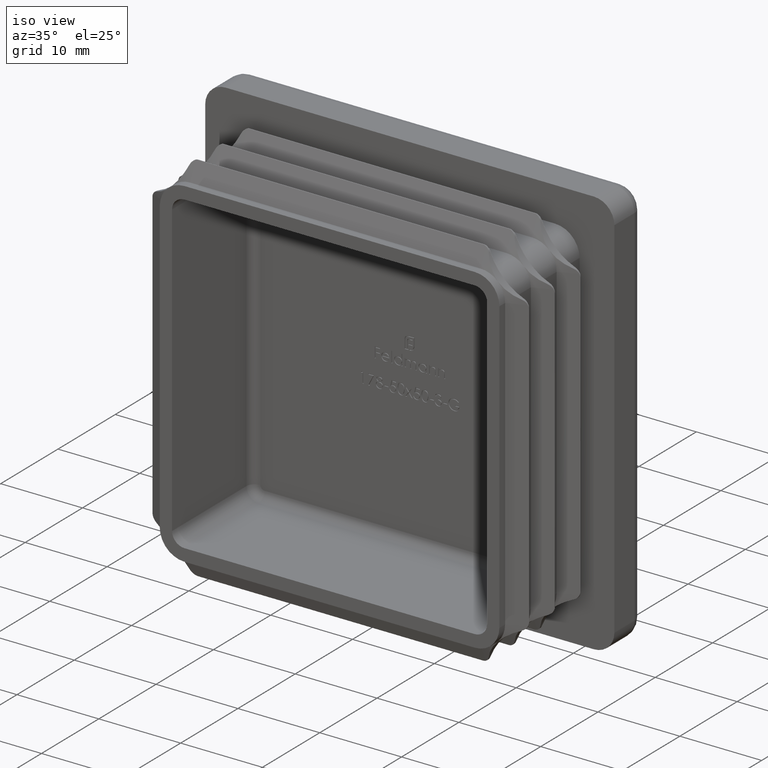
[diagram: clean part render]
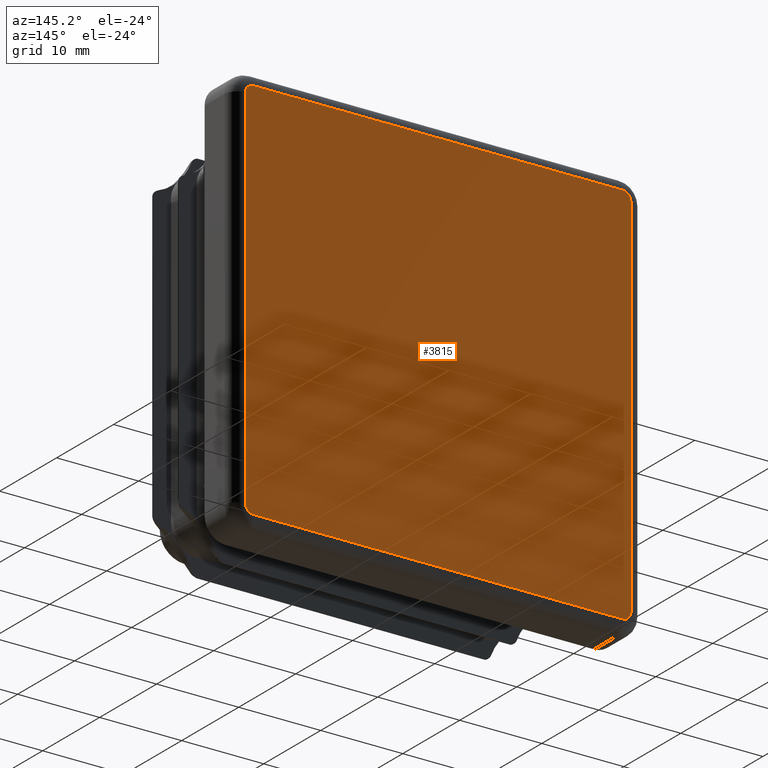
[diagram: tour spotlight — one face highlighted and labeled with its STEP entity id]
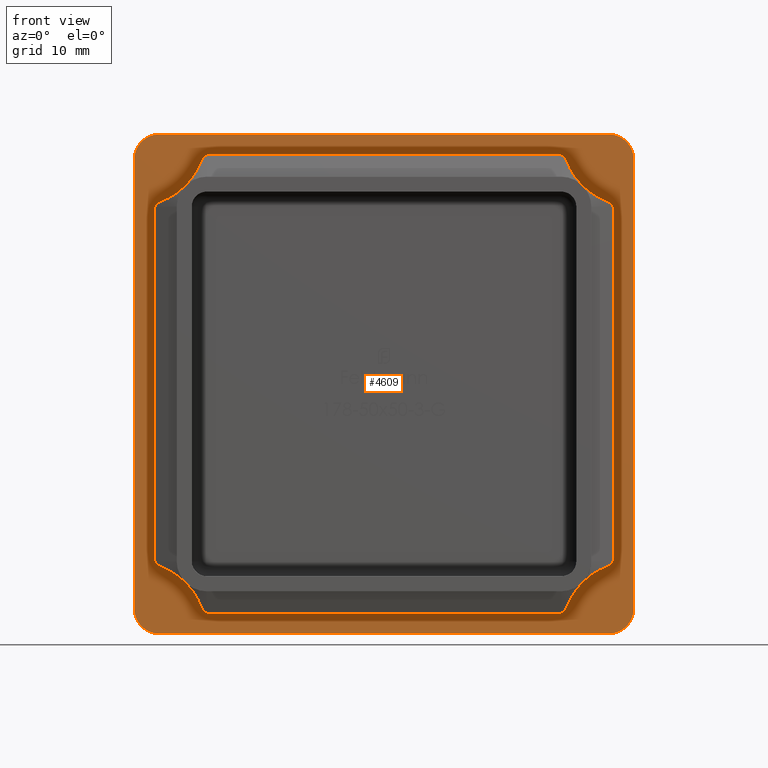
[diagram: tour spotlight — one face highlighted and labeled with its STEP entity id]
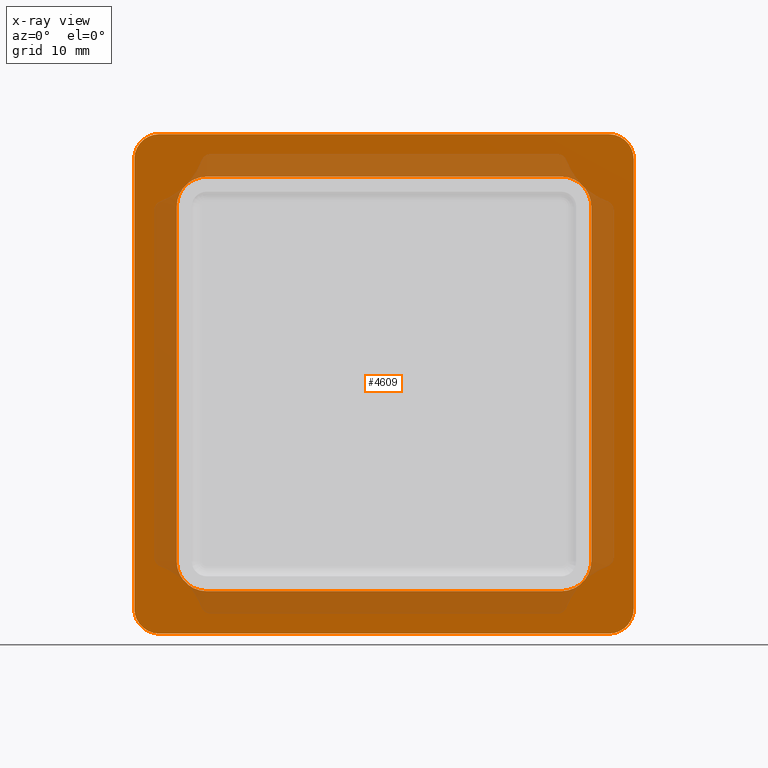
[diagram: x-ray of the same camera — body ghosted, this tour face saturated]
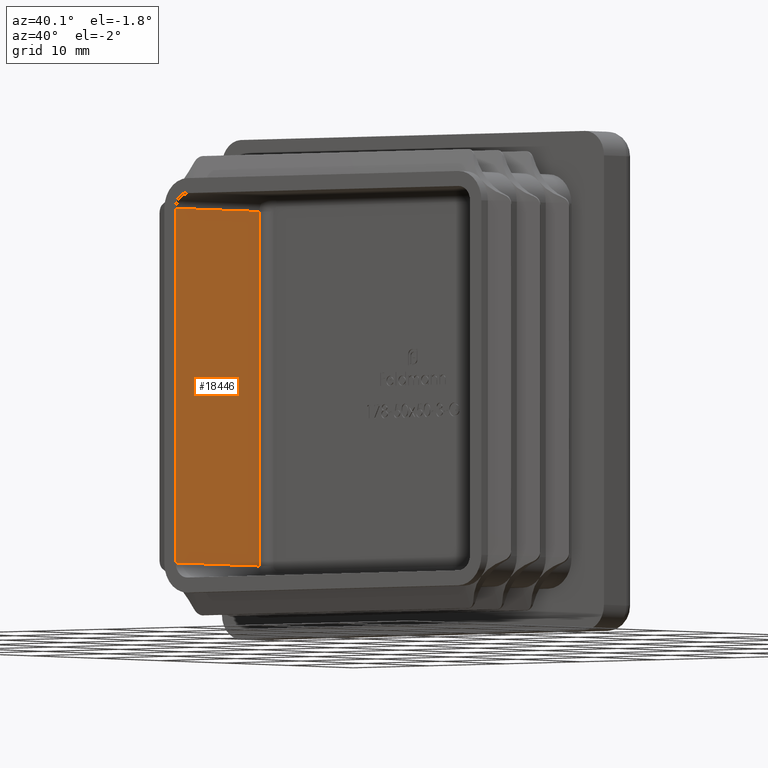
[diagram: tour spotlight — one face highlighted and labeled with its STEP entity id]
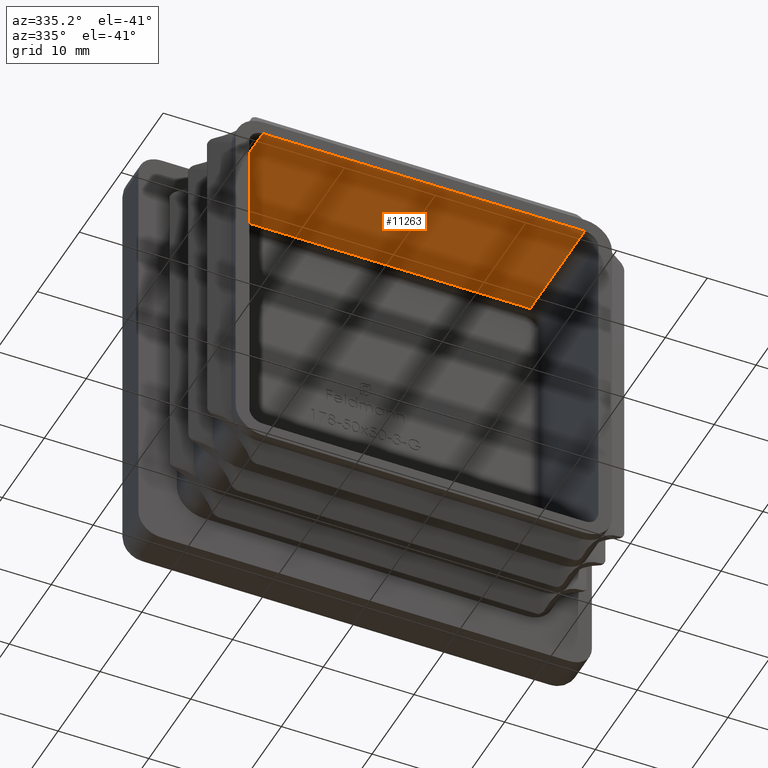
[diagram: tour spotlight — one face highlighted and labeled with its STEP entity id]
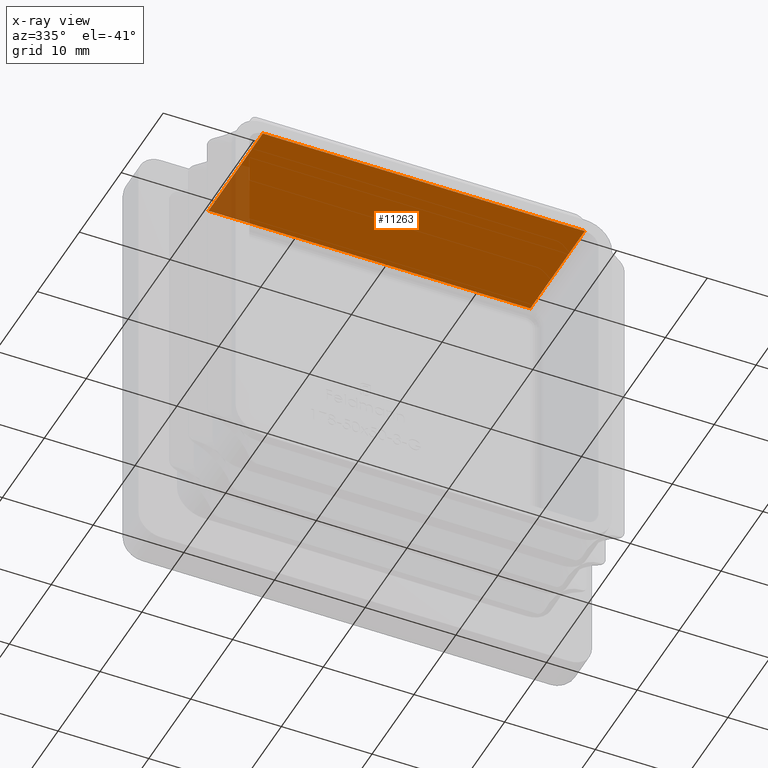
[diagram: x-ray of the same camera — body ghosted, this tour face saturated]
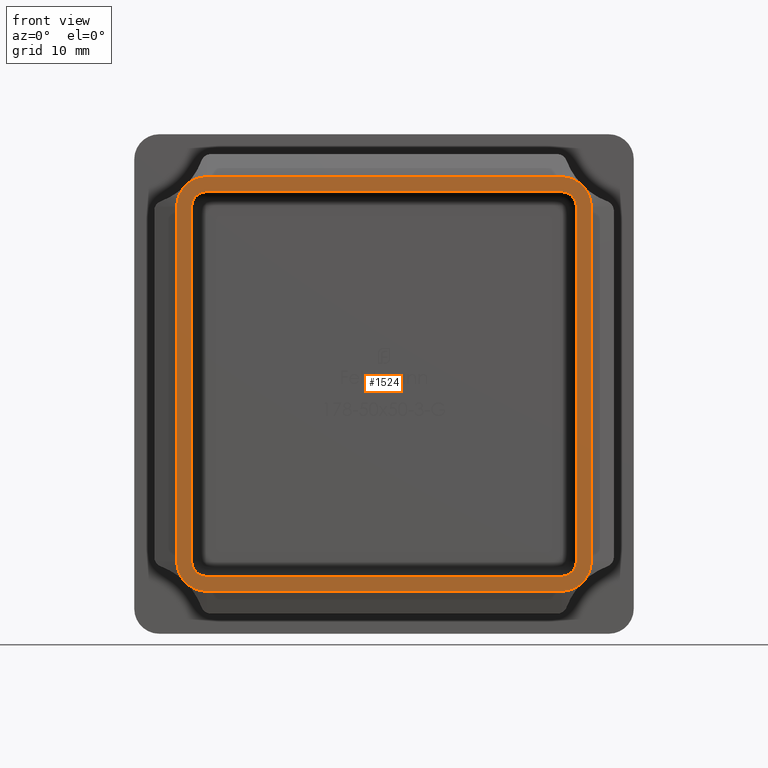
[diagram: tour spotlight — one face highlighted and labeled with its STEP entity id]
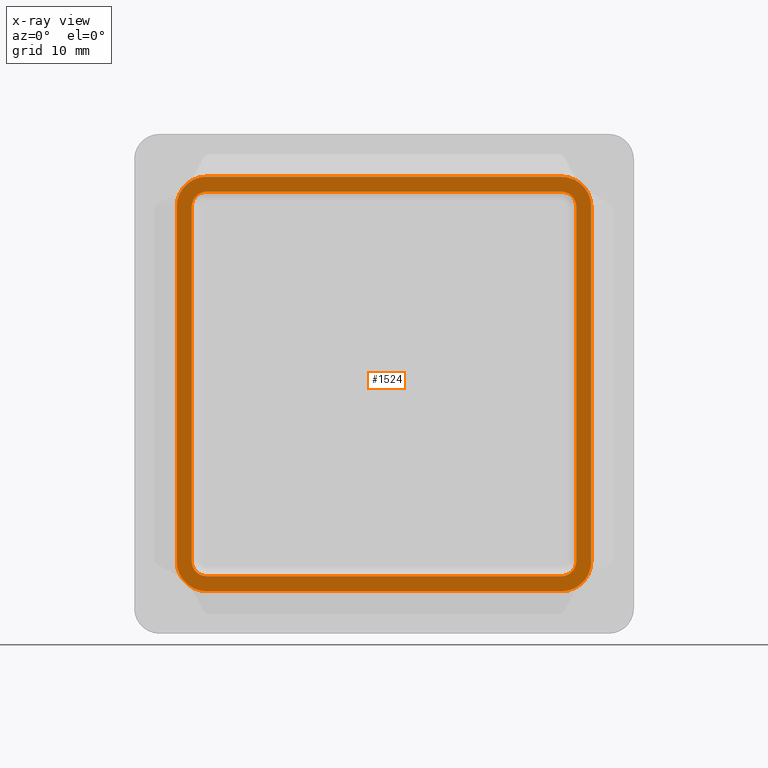
[diagram: x-ray of the same camera — body ghosted, this tour face saturated]
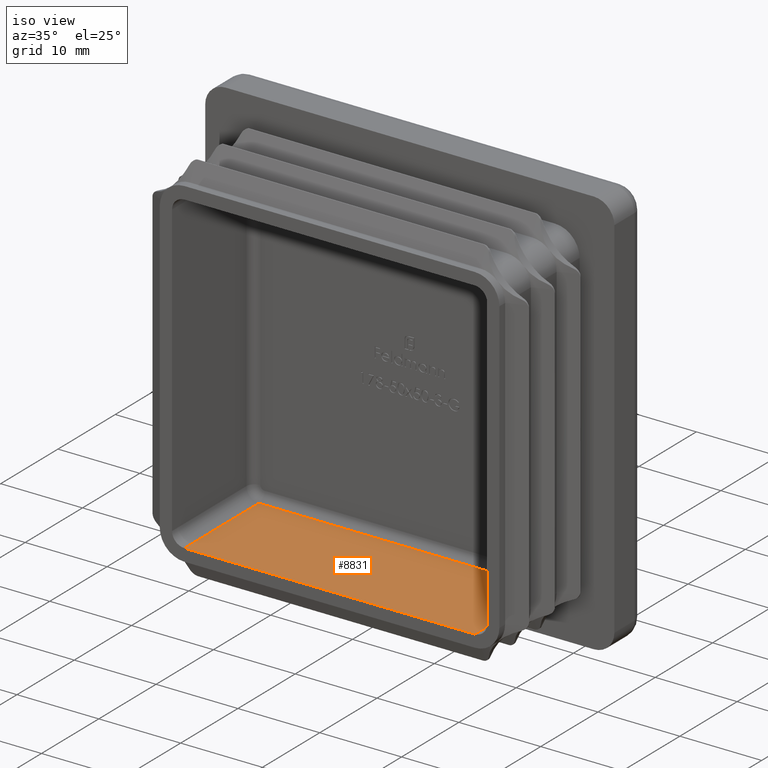
[diagram: tour spotlight — one face highlighted and labeled with its STEP entity id]
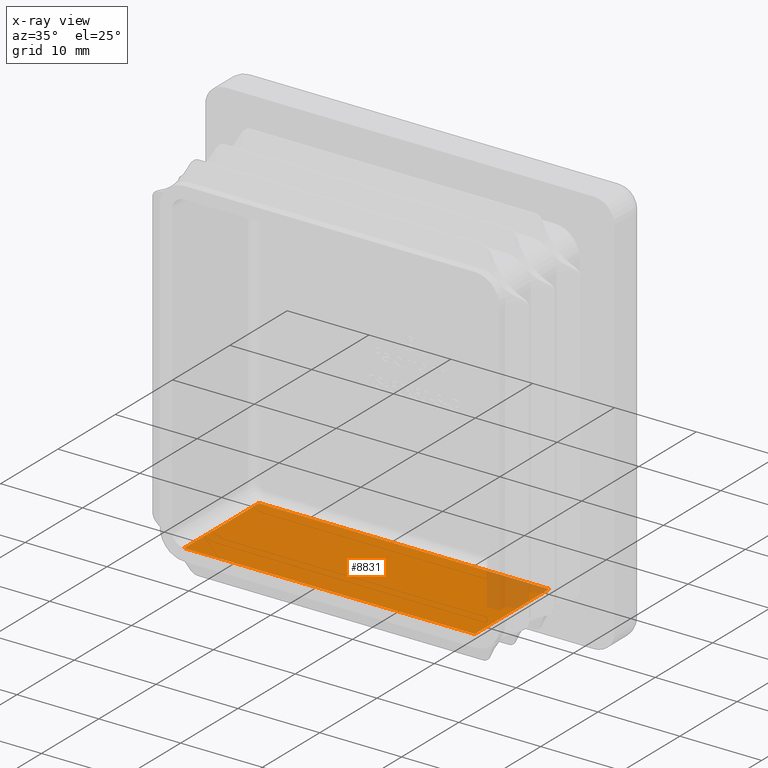
[diagram: x-ray of the same camera — body ghosted, this tour face saturated]
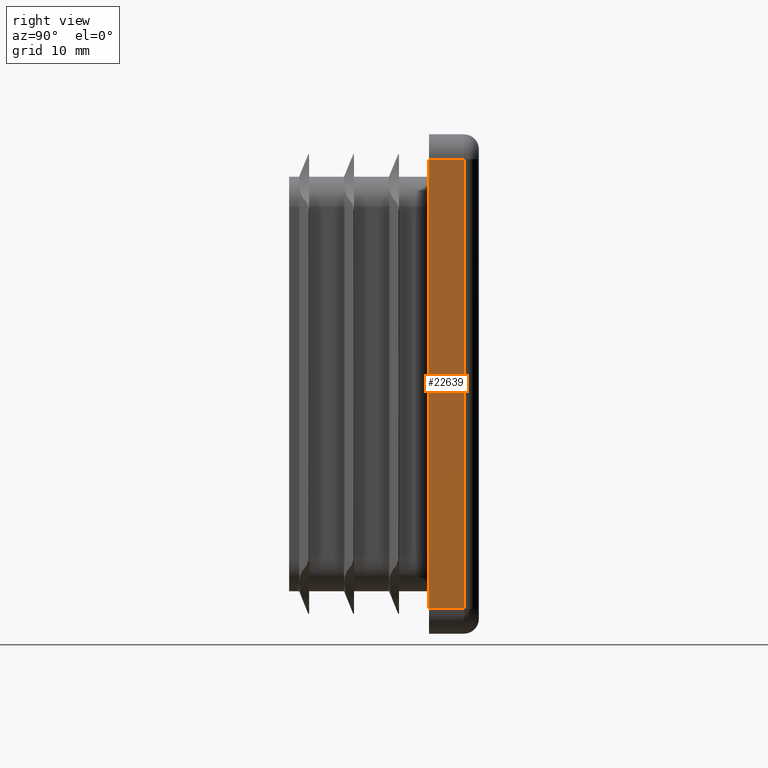
[diagram: tour spotlight — one face highlighted and labeled with its STEP entity id]
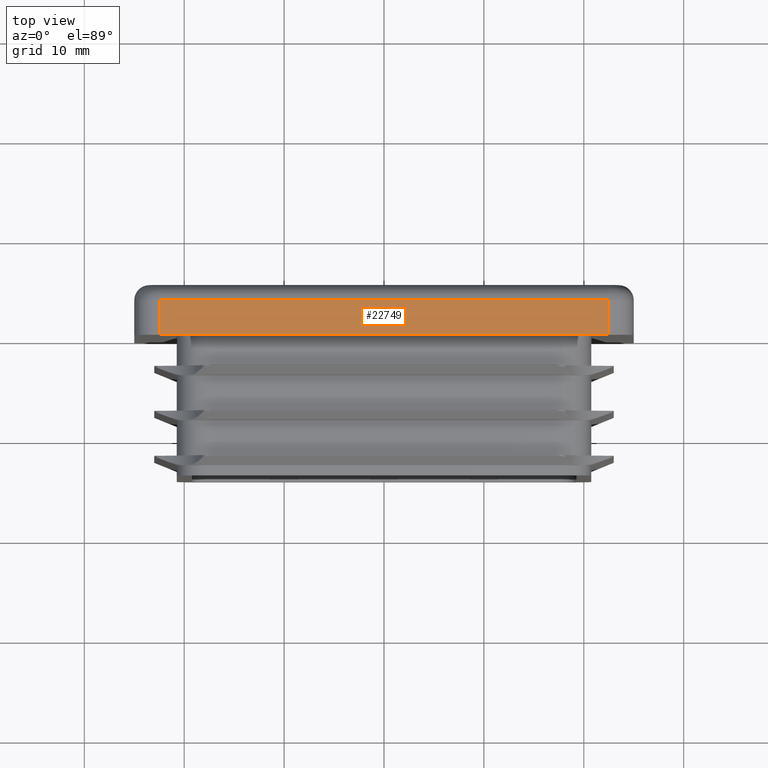
[diagram: tour spotlight — one face highlighted and labeled with its STEP entity id]
A machine part: a face-by-face anatomy tour. The part has 497 B-rep faces; the first image is the clean iso view, then the 8 largest visible faces are spotlighted one at a time (largest first), each with its STEP entity span.

Face 1 — auxiliary view, entity #3815. In plain terms, the highlighted planar face has unit normal (0, 1, 0).
Definition (entity closure, byte-faithful):
#810 = DIRECTION ( 'NONE',  ( 0.000000000000000000, -0.000000000000000000, 1.000000000000000000 ) ) ;
#829 = EDGE_CURVE ( 'NONE', #2502, #1906, #14884, .T. ) ;
#1675 = AXIS2_PLACEMENT_3D ( 'NONE', #22201, #20360, #14834 ) ;
#1743 = VECTOR ( 'NONE', #17785, 1000.000000000000000 ) ;
#1906 = VERTEX_POINT ( 'NONE', #18421 ) ;
#2252 = CARTESIAN_POINT ( 'NONE',  ( -22.50000000000000355, 5.000000000000000000, -23.50000000000000000 ) ) ;
#2304 = CARTESIAN_POINT ( 'NONE',  ( -22.49999999999999645, 5.000000000000000000, 22.50000000000000355 ) ) ;
#2390 = CARTESIAN_POINT ( 'NONE',  ( -23.50000000000000355, 5.000000000000000000, -22.50000000000000355 ) ) ;
#2502 = VERTEX_POINT ( 'NONE', #13738 ) ;
#2524 = DIRECTION ( 'NONE',  ( 1.387778780781445676E-16, -0.000000000000000000, 1.000000000000000000 ) ) ;
#2605 = LINE ( 'NONE', #12374, #7595 ) ;
#3180 = VERTEX_POINT ( 'NONE', #22377 ) ;
#3650 = CARTESIAN_POINT ( 'NONE',  ( 23.50000000000000000, 5.000000000000000000, -22.50000000000000355 ) ) ;
#3815 = ADVANCED_FACE ( 'NONE', ( #11778 ), #9619, .T. ) ;
#4018 = ORIENTED_EDGE ( 'NONE', *, *, #4838, .T. ) ;
#4442 = AXIS2_PLACEMENT_3D ( 'NONE', #18517, #18599, #810 ) ;
#4512 = DIRECTION ( 'NONE',  ( 0.000000000000000000, 0.000000000000000000, 1.000000000000000000 ) ) ;
#4838 = EDGE_CURVE ( 'NONE', #19682, #17691, #20911, .T. ) ;
#5064 = AXIS2_PLACEMENT_3D ( 'NONE', #22227, #6131, #4512 ) ;
#5119 = DIRECTION ( 'NONE',  ( 1.000000000000000000, -0.000000000000000000, 0.000000000000000000 ) ) ;
#5222 = CARTESIAN_POINT ( 'NONE',  ( 22.50000000000000000, 5.000000000000000000, -23.50000000000000355 ) ) ;
#5234 = EDGE_CURVE ( 'NONE', #1906, #9179, #15049, .T. ) ;
#5398 = EDGE_CURVE ( 'NONE', #9179, #19682, #2605, .T. ) ;
#6131 = DIRECTION ( 'NONE',  ( 0.000000000000000000, 1.000000000000000000, 0.000000000000000000 ) ) ;
#6452 = LINE ( 'NONE', #6554, #1743 ) ;
#6554 = CARTESIAN_POINT ( 'NONE',  ( -22.50000000000000355, 5.000000000000000000, -23.50000000000000000 ) ) ;
#6804 = CARTESIAN_POINT ( 'NONE',  ( 22.50000000000000711, 5.000000000000000000, 23.50000000000000000 ) ) ;
#7278 = DIRECTION ( 'NONE',  ( -1.387778780781445676E-16, 0.000000000000000000, -1.000000000000000000 ) ) ;
#7574 = DIRECTION ( 'NONE',  ( 0.000000000000000000, 0.000000000000000000, 1.000000000000000000 ) ) ;
#7595 = VECTOR ( 'NONE', #7278, 1000.000000000000000 ) ;
#7673 = EDGE_CURVE ( 'NONE', #3180, #2502, #18078, .T. ) ;
#8035 = AXIS2_PLACEMENT_3D ( 'NONE', #2304, #14669, #7574 ) ;
#8549 = CIRCLE ( 'NONE', #1675, 1.000000000000000888 ) ;
#9179 = VERTEX_POINT ( 'NONE', #9657 ) ;
#9619 = PLANE ( 'NONE',  #4442 ) ;
#9657 = CARTESIAN_POINT ( 'NONE',  ( 23.50000000000000711, 5.000000000000000000, 22.50000000000000000 ) ) ;
#10456 = VECTOR ( 'NONE', #5119, 1000.000000000000000 ) ;
#10460 = VERTEX_POINT ( 'NONE', #2252 ) ;
#11778 = FACE_OUTER_BOUND ( 'NONE', #15673, .T. ) ;
#11944 = ORIENTED_EDGE ( 'NONE', *, *, #5234, .T. ) ;
#12374 = CARTESIAN_POINT ( 'NONE',  ( 23.50000000000000000, 5.000000000000000000, -22.50000000000000355 ) ) ;
#12658 = ORIENTED_EDGE ( 'NONE', *, *, #7673, .T. ) ;
#12838 = VECTOR ( 'NONE', #2524, 1000.000000000000000 ) ;
#13123 = CARTESIAN_POINT ( 'NONE',  ( -23.49999999999999289, 5.000000000000000000, 22.50000000000000000 ) ) ;
#13511 = DIRECTION ( 'NONE',  ( 0.000000000000000000, 1.000000000000000000, 0.000000000000000000 ) ) ;
#13738 = CARTESIAN_POINT ( 'NONE',  ( -22.49999999999999645, 5.000000000000000000, 23.50000000000000355 ) ) ;
#14641 = ORIENTED_EDGE ( 'NONE', *, *, #17399, .T. ) ;
#14669 = DIRECTION ( 'NONE',  ( 0.000000000000000000, 1.000000000000000000, 0.000000000000000000 ) ) ;
#14679 = ORIENTED_EDGE ( 'NONE', *, *, #5398, .T. ) ;
#14834 = DIRECTION ( 'NONE',  ( 0.000000000000000000, 0.000000000000000000, 1.000000000000000000 ) ) ;
#14884 = LINE ( 'NONE', #6804, #10456 ) ;
#15049 = CIRCLE ( 'NONE', #5064, 1.000000000000000888 ) ;
#15673 = EDGE_LOOP ( 'NONE', ( #20268, #11944, #14679, #4018, #19167, #18020, #14641, #12658 ) ) ;
#16998 = DIRECTION ( 'NONE',  ( 0.000000000000000000, 0.000000000000000000, 1.000000000000000000 ) ) ;
#17399 = EDGE_CURVE ( 'NONE', #22321, #3180, #22280, .T. ) ;
#17691 = VERTEX_POINT ( 'NONE', #5222 ) ;
#17785 = DIRECTION ( 'NONE',  ( -1.000000000000000000, 0.000000000000000000, 0.000000000000000000 ) ) ;
#18020 = ORIENTED_EDGE ( 'NONE', *, *, #22343, .T. ) ;
#18078 = CIRCLE ( 'NONE', #8035, 1.000000000000000888 ) ;
#18421 = CARTESIAN_POINT ( 'NONE',  ( 22.50000000000001066, 5.000000000000000000, 23.50000000000000000 ) ) ;
#18517 = CARTESIAN_POINT ( 'NONE',  ( 0.000000000000000000, 5.000000000000000000, 0.000000000000000000 ) ) ;
#18599 = DIRECTION ( 'NONE',  ( 0.000000000000000000, 1.000000000000000000, 0.000000000000000000 ) ) ;
#19167 = ORIENTED_EDGE ( 'NONE', *, *, #20105, .T. ) ;
#19682 = VERTEX_POINT ( 'NONE', #3650 ) ;
#19726 = AXIS2_PLACEMENT_3D ( 'NONE', #22332, #13511, #16998 ) ;
#20105 = EDGE_CURVE ( 'NONE', #17691, #10460, #6452, .T. ) ;
#20268 = ORIENTED_EDGE ( 'NONE', *, *, #829, .T. ) ;
#20360 = DIRECTION ( 'NONE',  ( 0.000000000000000000, 1.000000000000000000, 0.000000000000000000 ) ) ;
#20911 = CIRCLE ( 'NONE', #19726, 1.000000000000000888 ) ;
#22201 = CARTESIAN_POINT ( 'NONE',  ( -22.50000000000000355, 5.000000000000000000, -22.50000000000000355 ) ) ;
#22227 = CARTESIAN_POINT ( 'NONE',  ( 22.50000000000001066, 5.000000000000000000, 22.50000000000000000 ) ) ;
#22280 = LINE ( 'NONE', #13123, #12838 ) ;
#22321 = VERTEX_POINT ( 'NONE', #2390 ) ;
#22332 = CARTESIAN_POINT ( 'NONE',  ( 22.50000000000000000, 5.000000000000000000, -22.50000000000000355 ) ) ;
#22343 = EDGE_CURVE ( 'NONE', #10460, #22321, #8549, .T. ) ;
#22377 = CARTESIAN_POINT ( 'NONE',  ( -23.49999999999999289, 5.000000000000000000, 22.50000000000000355 ) ) ;

Face 2 — front view, entity #4609. An x-ray twin of the same camera follows (body ghosted, this face saturated) — the face is partly hidden behind the body. In plain terms, the highlighted planar face has unit normal (0, 1, 0).
Definition (entity closure, byte-faithful):
#114 = EDGE_CURVE ( 'NONE', #18581, #17280, #9378, .T. ) ;
#444 = CARTESIAN_POINT ( 'NONE',  ( 20.74999999999999645, 0.000000000000000000, 17.75000000000000000 ) ) ;
#580 = VERTEX_POINT ( 'NONE', #8076 ) ;
#601 = CARTESIAN_POINT ( 'NONE',  ( -22.49999999999999645, 0.000000000000000000, 22.50000000000000355 ) ) ;
#645 = CARTESIAN_POINT ( 'NONE',  ( -17.75000000000000355, 0.000000000000000000, 20.75000000000000355 ) ) ;
#1480 = LINE ( 'NONE', #16422, #21661 ) ;
#1518 = CARTESIAN_POINT ( 'NONE',  ( 22.50000000000000000, 0.000000000000000000, -25.00000000000000000 ) ) ;
#1686 = CARTESIAN_POINT ( 'NONE',  ( -20.74999999999999645, 0.000000000000000000, -17.75000000000000355 ) ) ;
#1700 = EDGE_CURVE ( 'NONE', #9968, #15373, #10961, .T. ) ;
#1986 = DIRECTION ( 'NONE',  ( -0.000000000000000000, -1.000000000000000000, -0.000000000000000000 ) ) ;
#2044 = ORIENTED_EDGE ( 'NONE', *, *, #11025, .F. ) ;
#2439 = LINE ( 'NONE', #17764, #12110 ) ;
#2596 = ORIENTED_EDGE ( 'NONE', *, *, #18241, .F. ) ;
#2686 = CARTESIAN_POINT ( 'NONE',  ( -24.99999999999999289, 0.000000000000000000, 22.50000000000000000 ) ) ;
#2952 = CARTESIAN_POINT ( 'NONE',  ( -22.50000000000000355, 0.000000000000000000, -25.00000000000000000 ) ) ;
#3044 = DIRECTION ( 'NONE',  ( -0.000000000000000000, -1.000000000000000000, -0.000000000000000000 ) ) ;
#3367 = ORIENTED_EDGE ( 'NONE', *, *, #12538, .F. ) ;
#3415 = ORIENTED_EDGE ( 'NONE', *, *, #6526, .F. ) ;
#3558 = CARTESIAN_POINT ( 'NONE',  ( 17.75000000000000000, 0.000000000000000000, -20.75000000000000355 ) ) ;
#3966 = AXIS2_PLACEMENT_3D ( 'NONE', #18702, #13264, #6240 ) ;
#4115 = ORIENTED_EDGE ( 'NONE', *, *, #10103, .T. ) ;
#4310 = LINE ( 'NONE', #17689, #18714 ) ;
#4470 = VERTEX_POINT ( 'NONE', #4957 ) ;
#4542 = CARTESIAN_POINT ( 'NONE',  ( 25.00000000000000000, 0.000000000000000000, -25.00000000000000000 ) ) ;
#4609 = ADVANCED_FACE ( 'NONE', ( #9814, #10899 ), #17777, .F. ) ;
#4702 = VECTOR ( 'NONE', #21710, 1000.000000000000000 ) ;
#4708 = EDGE_CURVE ( 'NONE', #22850, #12807, #8980, .T. ) ;
#4761 = AXIS2_PLACEMENT_3D ( 'NONE', #7178, #10710, #15834 ) ;
#4809 = CARTESIAN_POINT ( 'NONE',  ( 17.74999999999999645, 0.000000000000000000, 17.75000000000000000 ) ) ;
#4823 = LINE ( 'NONE', #7321, #15030 ) ;
#4949 = VERTEX_POINT ( 'NONE', #1518 ) ;
#4957 = CARTESIAN_POINT ( 'NONE',  ( -17.75000000000000000, 0.000000000000000000, -20.75000000000000355 ) ) ;
#5239 = DIRECTION ( 'NONE',  ( 1.000000000000000000, 0.000000000000000000, 0.000000000000000000 ) ) ;
#5286 = VERTEX_POINT ( 'NONE', #18827 ) ;
#5389 = CARTESIAN_POINT ( 'NONE',  ( -17.75000000000000355, 0.000000000000000000, 17.75000000000000355 ) ) ;
#5508 = DIRECTION ( 'NONE',  ( 0.000000000000000000, -1.000000000000000000, 0.000000000000000000 ) ) ;
#5597 = LINE ( 'NONE', #21589, #18920 ) ;
#5782 = CARTESIAN_POINT ( 'NONE',  ( -25.00000000000000000, 0.000000000000000000, -22.50000000000000355 ) ) ;
#6054 = DIRECTION ( 'NONE',  ( 0.000000000000000000, 0.000000000000000000, -1.000000000000000000 ) ) ;
#6240 = DIRECTION ( 'NONE',  ( 5.551115123125785858E-15, 0.000000000000000000, 1.000000000000000000 ) ) ;
#6526 = EDGE_CURVE ( 'NONE', #22756, #21099, #1480, .T. ) ;
#6576 = EDGE_LOOP ( 'NONE', ( #11509, #10921, #20591, #9862, #3415, #4115, #17222, #22034 ) ) ;
#6586 = AXIS2_PLACEMENT_3D ( 'NONE', #21916, #11057, #6054 ) ;
#6912 = VERTEX_POINT ( 'NONE', #3558 ) ;
#7178 = CARTESIAN_POINT ( 'NONE',  ( 0.000000000000000000, 0.000000000000000000, 0.000000000000000000 ) ) ;
#7321 = CARTESIAN_POINT ( 'NONE',  ( -17.75000000000000355, 0.000000000000000000, 20.75000000000000355 ) ) ;
#7340 = CIRCLE ( 'NONE', #3966, 2.499999999999998668 ) ;
#8076 = CARTESIAN_POINT ( 'NONE',  ( 25.00000000000000000, 0.000000000000000000, -22.50000000000000355 ) ) ;
#8298 = EDGE_CURVE ( 'NONE', #4949, #12807, #5597, .T. ) ;
#8980 = CIRCLE ( 'NONE', #17059, 2.499999999999998668 ) ;
#9258 = CARTESIAN_POINT ( 'NONE',  ( 20.74999999999999645, 0.000000000000000000, -17.75000000000000355 ) ) ;
#9378 = LINE ( 'NONE', #444, #4702 ) ;
#9496 = ORIENTED_EDGE ( 'NONE', *, *, #9971, .F. ) ;
#9814 = FACE_BOUND ( 'NONE', #19525, .T. ) ;
#9830 = EDGE_CURVE ( 'NONE', #4949, #580, #15806, .T. ) ;
#9862 = ORIENTED_EDGE ( 'NONE', *, *, #16321, .T. ) ;
#9968 = VERTEX_POINT ( 'NONE', #645 ) ;
#9971 = EDGE_CURVE ( 'NONE', #6912, #18581, #13867, .T. ) ;
#10058 = LINE ( 'NONE', #19814, #12796 ) ;
#10103 = EDGE_CURVE ( 'NONE', #22756, #18740, #15240, .T. ) ;
#10240 = DIRECTION ( 'NONE',  ( 1.387778780781445676E-16, 0.000000000000000000, 1.000000000000000000 ) ) ;
#10262 = VERTEX_POINT ( 'NONE', #16996 ) ;
#10710 = DIRECTION ( 'NONE',  ( 0.000000000000000000, 1.000000000000000000, 0.000000000000000000 ) ) ;
#10761 = CIRCLE ( 'NONE', #12670, 3.000000000000002665 ) ;
#10893 = DIRECTION ( 'NONE',  ( 1.954618001100627573E-16, -0.000000000000000000, -1.000000000000000000 ) ) ;
#10899 = FACE_OUTER_BOUND ( 'NONE', #6576, .T. ) ;
#10921 = ORIENTED_EDGE ( 'NONE', *, *, #9830, .T. ) ;
#10961 = CIRCLE ( 'NONE', #14186, 3.000000000000002665 ) ;
#11025 = EDGE_CURVE ( 'NONE', #17280, #10262, #10761, .T. ) ;
#11057 = DIRECTION ( 'NONE',  ( 0.000000000000000000, -1.000000000000000000, 0.000000000000000000 ) ) ;
#11509 = ORIENTED_EDGE ( 'NONE', *, *, #8298, .F. ) ;
#11869 = CARTESIAN_POINT ( 'NONE',  ( 22.50000000000000000, 0.000000000000000000, -22.50000000000000355 ) ) ;
#12110 = VECTOR ( 'NONE', #5239, 1000.000000000000000 ) ;
#12226 = EDGE_CURVE ( 'NONE', #5286, #580, #13547, .T. ) ;
#12311 = ORIENTED_EDGE ( 'NONE', *, *, #114, .F. ) ;
#12538 = EDGE_CURVE ( 'NONE', #21677, #4470, #19089, .T. ) ;
#12645 = DIRECTION ( 'NONE',  ( 0.000000000000000000, -1.000000000000000000, 0.000000000000000000 ) ) ;
#12670 = AXIS2_PLACEMENT_3D ( 'NONE', #4809, #18967, #13746 ) ;
#12690 = CARTESIAN_POINT ( 'NONE',  ( -17.75000000000000000, -0.000000000000000000, -17.75000000000000355 ) ) ;
#12761 = DIRECTION ( 'NONE',  ( -1.000000000000000000, -0.000000000000000000, -0.000000000000000000 ) ) ;
#12796 = VECTOR ( 'NONE', #10893, 1000.000000000000000 ) ;
#12807 = VERTEX_POINT ( 'NONE', #2952 ) ;
#12856 = DIRECTION ( 'NONE',  ( -1.000000000000000000, -0.000000000000000000, 9.773090005503139098E-17 ) ) ;
#13196 = DIRECTION ( 'NONE',  ( 0.000000000000000000, 0.000000000000000000, 1.000000000000000000 ) ) ;
#13264 = DIRECTION ( 'NONE',  ( -0.000000000000000000, -1.000000000000000000, -0.000000000000000000 ) ) ;
#13530 = EDGE_CURVE ( 'NONE', #4470, #6912, #2439, .T. ) ;
#13547 = LINE ( 'NONE', #4542, #14906 ) ;
#13561 = CARTESIAN_POINT ( 'NONE',  ( 22.50000000000000711, 0.000000000000000000, 25.00000000000000000 ) ) ;
#13746 = DIRECTION ( 'NONE',  ( 0.000000000000000000, 0.000000000000000000, 1.000000000000000000 ) ) ;
#13867 = CIRCLE ( 'NONE', #6586, 3.000000000000002665 ) ;
#14186 = AXIS2_PLACEMENT_3D ( 'NONE', #5389, #12645, #16047 ) ;
#14581 = DIRECTION ( 'NONE',  ( 0.000000000000000000, 0.000000000000000000, 1.000000000000000000 ) ) ;
#14653 = CARTESIAN_POINT ( 'NONE',  ( -22.50000000000000355, 0.000000000000000000, -22.50000000000000355 ) ) ;
#14733 = DIRECTION ( 'NONE',  ( -0.000000000000000000, -1.000000000000000000, -0.000000000000000000 ) ) ;
#14906 = VECTOR ( 'NONE', #16673, 1000.000000000000000 ) ;
#15030 = VECTOR ( 'NONE', #12856, 1000.000000000000000 ) ;
#15240 = CIRCLE ( 'NONE', #16062, 2.499999999999998668 ) ;
#15373 = VERTEX_POINT ( 'NONE', #18243 ) ;
#15417 = DIRECTION ( 'NONE',  ( 0.000000000000000000, 0.000000000000000000, 1.000000000000000000 ) ) ;
#15670 = ORIENTED_EDGE ( 'NONE', *, *, #19232, .F. ) ;
#15722 = EDGE_CURVE ( 'NONE', #22850, #18740, #4310, .T. ) ;
#15806 = CIRCLE ( 'NONE', #18004, 2.499999999999998668 ) ;
#15834 = DIRECTION ( 'NONE',  ( 0.000000000000000000, -0.000000000000000000, 1.000000000000000000 ) ) ;
#16047 = DIRECTION ( 'NONE',  ( 0.000000000000000000, 0.000000000000000000, 1.000000000000000000 ) ) ;
#16062 = AXIS2_PLACEMENT_3D ( 'NONE', #601, #14733, #13196 ) ;
#16093 = ORIENTED_EDGE ( 'NONE', *, *, #1700, .F. ) ;
#16321 = EDGE_CURVE ( 'NONE', #5286, #21099, #7340, .T. ) ;
#16422 = CARTESIAN_POINT ( 'NONE',  ( -24.99999999999999289, 0.000000000000000000, 25.00000000000000000 ) ) ;
#16673 = DIRECTION ( 'NONE',  ( -1.387778780781445676E-16, -0.000000000000000000, -1.000000000000000000 ) ) ;
#16996 = CARTESIAN_POINT ( 'NONE',  ( 17.74999999999999645, 0.000000000000000000, 20.75000000000000000 ) ) ;
#17059 = AXIS2_PLACEMENT_3D ( 'NONE', #14653, #1986, #14581 ) ;
#17222 = ORIENTED_EDGE ( 'NONE', *, *, #15722, .F. ) ;
#17280 = VERTEX_POINT ( 'NONE', #19562 ) ;
#17689 = CARTESIAN_POINT ( 'NONE',  ( -25.00000000000000000, 0.000000000000000000, -25.00000000000000000 ) ) ;
#17764 = CARTESIAN_POINT ( 'NONE',  ( -17.75000000000000000, -0.000000000000000000, -20.75000000000000355 ) ) ;
#17777 = PLANE ( 'NONE',  #4761 ) ;
#18004 = AXIS2_PLACEMENT_3D ( 'NONE', #11869, #3044, #15417 ) ;
#18202 = DIRECTION ( 'NONE',  ( 1.000000000000000000, 0.000000000000000000, 0.000000000000000000 ) ) ;
#18241 = EDGE_CURVE ( 'NONE', #15373, #21677, #10058, .T. ) ;
#18243 = CARTESIAN_POINT ( 'NONE',  ( -20.75000000000000355, 0.000000000000000000, 17.75000000000000355 ) ) ;
#18581 = VERTEX_POINT ( 'NONE', #9258 ) ;
#18702 = CARTESIAN_POINT ( 'NONE',  ( 22.50000000000001066, 0.000000000000000000, 22.50000000000000000 ) ) ;
#18714 = VECTOR ( 'NONE', #10240, 1000.000000000000000 ) ;
#18740 = VERTEX_POINT ( 'NONE', #2686 ) ;
#18827 = CARTESIAN_POINT ( 'NONE',  ( 25.00000000000000711, 0.000000000000000000, 22.50000000000000000 ) ) ;
#18920 = VECTOR ( 'NONE', #12761, 1000.000000000000000 ) ;
#18967 = DIRECTION ( 'NONE',  ( 0.000000000000000000, -1.000000000000000000, 0.000000000000000000 ) ) ;
#19089 = CIRCLE ( 'NONE', #20107, 3.000000000000000888 ) ;
#19232 = EDGE_CURVE ( 'NONE', #10262, #9968, #4823, .T. ) ;
#19368 = ORIENTED_EDGE ( 'NONE', *, *, #13530, .F. ) ;
#19525 = EDGE_LOOP ( 'NONE', ( #15670, #2044, #12311, #9496, #19368, #3367, #2596, #16093 ) ) ;
#19562 = CARTESIAN_POINT ( 'NONE',  ( 20.74999999999999645, 0.000000000000000000, 17.75000000000000000 ) ) ;
#19676 = DIRECTION ( 'NONE',  ( 0.000000000000000000, 0.000000000000000000, 1.000000000000000000 ) ) ;
#19814 = CARTESIAN_POINT ( 'NONE',  ( -20.75000000000000355, 0.000000000000000000, 17.75000000000000355 ) ) ;
#20107 = AXIS2_PLACEMENT_3D ( 'NONE', #12690, #5508, #19676 ) ;
#20591 = ORIENTED_EDGE ( 'NONE', *, *, #12226, .F. ) ;
#21099 = VERTEX_POINT ( 'NONE', #13561 ) ;
#21589 = CARTESIAN_POINT ( 'NONE',  ( -25.00000000000000000, 0.000000000000000000, -25.00000000000000000 ) ) ;
#21661 = VECTOR ( 'NONE', #18202, 1000.000000000000000 ) ;
#21677 = VERTEX_POINT ( 'NONE', #1686 ) ;
#21710 = DIRECTION ( 'NONE',  ( -0.000000000000000000, -0.000000000000000000, 1.000000000000000000 ) ) ;
#21711 = CARTESIAN_POINT ( 'NONE',  ( -22.49999999999999645, 0.000000000000000000, 25.00000000000000000 ) ) ;
#21916 = CARTESIAN_POINT ( 'NONE',  ( 17.75000000000000000, 0.000000000000000000, -17.75000000000000355 ) ) ;
#22034 = ORIENTED_EDGE ( 'NONE', *, *, #4708, .T. ) ;
#22756 = VERTEX_POINT ( 'NONE', #21711 ) ;
#22850 = VERTEX_POINT ( 'NONE', #5782 ) ;

Face 3 — auxiliary view, entity #18446. In plain terms, the highlighted planar face has unit normal (1, 0, 0).
Definition (entity closure, byte-faithful):
#335 = DIRECTION ( 'NONE',  ( 9.773090005503137866E-17, -0.000000000000000000, -1.000000000000000000 ) ) ;
#1599 = DIRECTION ( 'NONE',  ( -0.000000000000000000, 1.000000000000000000, -0.000000000000000000 ) ) ;
#2020 = EDGE_LOOP ( 'NONE', ( #21794, #15220, #4888, #12493 ) ) ;
#3386 = DIRECTION ( 'NONE',  ( 9.773090005503137866E-17, 0.000000000000000000, -1.000000000000000000 ) ) ;
#3554 = CARTESIAN_POINT ( 'NONE',  ( -19.24999999999999645, -14.00000000000000000, -17.75000000000000355 ) ) ;
#4888 = ORIENTED_EDGE ( 'NONE', *, *, #18998, .F. ) ;
#5687 = CARTESIAN_POINT ( 'NONE',  ( -19.24999999999999645, -0.9999999999999991118, -17.75000000000000355 ) ) ;
#5919 = LINE ( 'NONE', #15595, #12282 ) ;
#6411 = EDGE_CURVE ( 'NONE', #9889, #13447, #21409, .T. ) ;
#6679 = EDGE_CURVE ( 'NONE', #19282, #10815, #10567, .T. ) ;
#7287 = FACE_OUTER_BOUND ( 'NONE', #2020, .T. ) ;
#8054 = DIRECTION ( 'NONE',  ( -9.773090005503137866E-17, -0.000000000000000000, 1.000000000000000000 ) ) ;
#8979 = EDGE_CURVE ( 'NONE', #13447, #19282, #11951, .T. ) ;
#9889 = VERTEX_POINT ( 'NONE', #15642 ) ;
#10567 = LINE ( 'NONE', #16884, #20871 ) ;
#10802 = CARTESIAN_POINT ( 'NONE',  ( -19.25000000000000000, -0.9999999999999991118, 17.75000000000000355 ) ) ;
#10815 = VERTEX_POINT ( 'NONE', #10802 ) ;
#11951 = LINE ( 'NONE', #3554, #17229 ) ;
#12282 = VECTOR ( 'NONE', #1599, 1000.000000000000000 ) ;
#12493 = ORIENTED_EDGE ( 'NONE', *, *, #6411, .T. ) ;
#13447 = VERTEX_POINT ( 'NONE', #17395 ) ;
#13898 = PLANE ( 'NONE',  #20764 ) ;
#14318 = CARTESIAN_POINT ( 'NONE',  ( -19.25000000000000000, -14.00000000000000000, 17.75000000000000355 ) ) ;
#15220 = ORIENTED_EDGE ( 'NONE', *, *, #6679, .T. ) ;
#15595 = CARTESIAN_POINT ( 'NONE',  ( -19.25000000000000000, -14.00000000000000000, 17.75000000000000355 ) ) ;
#15642 = CARTESIAN_POINT ( 'NONE',  ( -19.25000000000000000, -14.00000000000000000, 17.75000000000000355 ) ) ;
#15922 = DIRECTION ( 'NONE',  ( -0.000000000000000000, 1.000000000000000000, -0.000000000000000000 ) ) ;
#16884 = CARTESIAN_POINT ( 'NONE',  ( -19.25000000000000000, -0.9999999999999991118, 17.75000000000000355 ) ) ;
#16975 = VECTOR ( 'NONE', #335, 1000.000000000000000 ) ;
#17229 = VECTOR ( 'NONE', #15922, 1000.000000000000000 ) ;
#17395 = CARTESIAN_POINT ( 'NONE',  ( -19.24999999999999645, -14.00000000000000000, -17.75000000000000355 ) ) ;
#18446 = ADVANCED_FACE ( 'NONE', ( #7287 ), #13898, .T. ) ;
#18998 = EDGE_CURVE ( 'NONE', #9889, #10815, #5919, .T. ) ;
#19282 = VERTEX_POINT ( 'NONE', #5687 ) ;
#20764 = AXIS2_PLACEMENT_3D ( 'NONE', #20819, #22820, #3386 ) ;
#20819 = CARTESIAN_POINT ( 'NONE',  ( -19.25000000000000000, -14.00000000000000000, 17.75000000000000355 ) ) ;
#20871 = VECTOR ( 'NONE', #8054, 1000.000000000000000 ) ;
#21409 = LINE ( 'NONE', #14318, #16975 ) ;
#21794 = ORIENTED_EDGE ( 'NONE', *, *, #8979, .T. ) ;
#22820 = DIRECTION ( 'NONE',  ( 1.000000000000000000, 0.000000000000000000, 9.773090005503137866E-17 ) ) ;

Face 4 — auxiliary view, entity #11263. An x-ray twin of the same camera follows (body ghosted, this face saturated) — the face is partly hidden behind the body. In plain terms, the highlighted planar face has unit normal (0, 0, -1).
Definition (entity closure, byte-faithful):
#540 = LINE ( 'NONE', #21590, #2460 ) ;
#1306 = EDGE_CURVE ( 'NONE', #14743, #11374, #17396, .T. ) ;
#1606 = LINE ( 'NONE', #22193, #19615 ) ;
#2460 = VECTOR ( 'NONE', #3871, 1000.000000000000000 ) ;
#2526 = DIRECTION ( 'NONE',  ( 0.000000000000000000, 0.000000000000000000, -1.000000000000000000 ) ) ;
#3305 = LINE ( 'NONE', #10780, #9409 ) ;
#3470 = ORIENTED_EDGE ( 'NONE', *, *, #22680, .T. ) ;
#3871 = DIRECTION ( 'NONE',  ( -0.000000000000000000, 1.000000000000000000, -0.000000000000000000 ) ) ;
#4386 = CARTESIAN_POINT ( 'NONE',  ( 17.74999999999999645, -0.9999999999999991118, 19.25000000000000000 ) ) ;
#5268 = VERTEX_POINT ( 'NONE', #19054 ) ;
#9409 = VECTOR ( 'NONE', #18000, 1000.000000000000000 ) ;
#9600 = EDGE_LOOP ( 'NONE', ( #15860, #15533, #21965, #3470 ) ) ;
#9810 = DIRECTION ( 'NONE',  ( 1.000000000000000000, -0.000000000000000000, -0.000000000000000000 ) ) ;
#10279 = CARTESIAN_POINT ( 'NONE',  ( 17.74999999999999645, -14.00000000000000000, 19.25000000000000000 ) ) ;
#10780 = CARTESIAN_POINT ( 'NONE',  ( -17.75000000000000355, -14.00000000000000000, 19.25000000000000000 ) ) ;
#11184 = AXIS2_PLACEMENT_3D ( 'NONE', #21959, #2526, #16375 ) ;
#11263 = ADVANCED_FACE ( 'NONE', ( #11333 ), #14584, .T. ) ;
#11333 = FACE_OUTER_BOUND ( 'NONE', #9600, .T. ) ;
#11374 = VERTEX_POINT ( 'NONE', #4386 ) ;
#11557 = CARTESIAN_POINT ( 'NONE',  ( 17.74999999999999645, -14.00000000000000000, 19.25000000000000355 ) ) ;
#12218 = DIRECTION ( 'NONE',  ( -0.000000000000000000, 1.000000000000000000, -0.000000000000000000 ) ) ;
#12507 = EDGE_CURVE ( 'NONE', #5268, #20910, #540, .T. ) ;
#13254 = EDGE_CURVE ( 'NONE', #20910, #11374, #1606, .T. ) ;
#14584 = PLANE ( 'NONE',  #11184 ) ;
#14743 = VERTEX_POINT ( 'NONE', #11557 ) ;
#15533 = ORIENTED_EDGE ( 'NONE', *, *, #13254, .T. ) ;
#15860 = ORIENTED_EDGE ( 'NONE', *, *, #12507, .T. ) ;
#16375 = DIRECTION ( 'NONE',  ( -1.000000000000000000, 0.000000000000000000, -0.000000000000000000 ) ) ;
#17396 = LINE ( 'NONE', #10279, #19869 ) ;
#18000 = DIRECTION ( 'NONE',  ( -1.000000000000000000, -0.000000000000000000, -0.000000000000000000 ) ) ;
#18601 = CARTESIAN_POINT ( 'NONE',  ( -17.75000000000000355, -0.9999999999999991118, 19.25000000000000000 ) ) ;
#19054 = CARTESIAN_POINT ( 'NONE',  ( -17.75000000000000355, -14.00000000000000000, 19.25000000000000000 ) ) ;
#19615 = VECTOR ( 'NONE', #9810, 1000.000000000000000 ) ;
#19869 = VECTOR ( 'NONE', #12218, 1000.000000000000000 ) ;
#20910 = VERTEX_POINT ( 'NONE', #18601 ) ;
#21590 = CARTESIAN_POINT ( 'NONE',  ( -17.75000000000000355, -14.00000000000000000, 19.25000000000000000 ) ) ;
#21959 = CARTESIAN_POINT ( 'NONE',  ( -17.75000000000000355, -14.00000000000000000, 19.25000000000000000 ) ) ;
#21965 = ORIENTED_EDGE ( 'NONE', *, *, #1306, .F. ) ;
#22193 = CARTESIAN_POINT ( 'NONE',  ( -17.75000000000000355, -0.9999999999999991118, 19.25000000000000000 ) ) ;
#22680 = EDGE_CURVE ( 'NONE', #14743, #5268, #3305, .T. ) ;

Face 5 — front view, entity #1524. An x-ray twin of the same camera follows (body ghosted, this face saturated) — the face is partly hidden behind the body. In plain terms, the highlighted planar face has unit normal (0, -1, 0).
Definition (entity closure, byte-faithful):
#113 = CARTESIAN_POINT ( 'NONE',  ( -20.74999999999999645, -14.00000000000000000, -17.75000000000000355 ) ) ;
#177 = CARTESIAN_POINT ( 'NONE',  ( -17.75000000000000000, -14.00000000000000000, -19.25000000000000000 ) ) ;
#335 = DIRECTION ( 'NONE',  ( 9.773090005503137866E-17, -0.000000000000000000, -1.000000000000000000 ) ) ;
#519 = EDGE_CURVE ( 'NONE', #1875, #20171, #1090, .T. ) ;
#652 = EDGE_CURVE ( 'NONE', #17264, #4864, #18793, .T. ) ;
#742 = DIRECTION ( 'NONE',  ( 0.000000000000000000, -1.000000000000000000, 0.000000000000000000 ) ) ;
#779 = EDGE_LOOP ( 'NONE', ( #19806, #19124, #9616, #8566, #7960, #3930, #8581, #2628 ) ) ;
#1090 = CIRCLE ( 'NONE', #15514, 3.000000000000000888 ) ;
#1113 = VERTEX_POINT ( 'NONE', #13310 ) ;
#1211 = EDGE_CURVE ( 'NONE', #10786, #20977, #13502, .T. ) ;
#1461 = VERTEX_POINT ( 'NONE', #15101 ) ;
#1524 = ADVANCED_FACE ( 'NONE', ( #22363, #16261 ), #4437, .T. ) ;
#1875 = VERTEX_POINT ( 'NONE', #113 ) ;
#2134 = DIRECTION ( 'NONE',  ( 0.000000000000000000, -1.000000000000000000, 0.000000000000000000 ) ) ;
#2504 = DIRECTION ( 'NONE',  ( 0.000000000000000000, 0.000000000000000000, 1.000000000000000000 ) ) ;
#2511 = CIRCLE ( 'NONE', #4532, 3.000000000000002665 ) ;
#2628 = ORIENTED_EDGE ( 'NONE', *, *, #12306, .T. ) ;
#2640 = CIRCLE ( 'NONE', #16263, 1.500000000000001332 ) ;
#2759 = LINE ( 'NONE', #20327, #6351 ) ;
#2925 = EDGE_CURVE ( 'NONE', #5189, #1875, #14278, .T. ) ;
#3305 = LINE ( 'NONE', #10780, #9409 ) ;
#3594 = CARTESIAN_POINT ( 'NONE',  ( 17.74999999999999645, -14.00000000000000000, 17.75000000000000000 ) ) ;
#3798 = ORIENTED_EDGE ( 'NONE', *, *, #22680, .F. ) ;
#3930 = ORIENTED_EDGE ( 'NONE', *, *, #2925, .T. ) ;
#4126 = CIRCLE ( 'NONE', #6754, 1.499999999999997780 ) ;
#4182 = EDGE_LOOP ( 'NONE', ( #5259, #22527, #3798, #6100, #13233, #19843, #13913, #8647 ) ) ;
#4239 = EDGE_CURVE ( 'NONE', #20977, #1461, #7338, .T. ) ;
#4343 = AXIS2_PLACEMENT_3D ( 'NONE', #12973, #18404, #16303 ) ;
#4437 = PLANE ( 'NONE',  #20136 ) ;
#4513 = VERTEX_POINT ( 'NONE', #20896 ) ;
#4532 = AXIS2_PLACEMENT_3D ( 'NONE', #20241, #16741, #6151 ) ;
#4864 = VERTEX_POINT ( 'NONE', #17079 ) ;
#5085 = CIRCLE ( 'NONE', #4343, 3.000000000000002665 ) ;
#5189 = VERTEX_POINT ( 'NONE', #5754 ) ;
#5259 = ORIENTED_EDGE ( 'NONE', *, *, #6411, .F. ) ;
#5268 = VERTEX_POINT ( 'NONE', #19054 ) ;
#5401 = VECTOR ( 'NONE', #7127, 1000.000000000000000 ) ;
#5754 = CARTESIAN_POINT ( 'NONE',  ( -20.75000000000000355, -14.00000000000000000, 17.75000000000000355 ) ) ;
#5951 = DIRECTION ( 'NONE',  ( -0.000000000000000000, -0.000000000000000000, 1.000000000000000000 ) ) ;
#5997 = CARTESIAN_POINT ( 'NONE',  ( -17.75000000000000355, -14.00000000000000000, 17.75000000000000355 ) ) ;
#6100 = ORIENTED_EDGE ( 'NONE', *, *, #15758, .F. ) ;
#6140 = CARTESIAN_POINT ( 'NONE',  ( 17.75000000000000000, -14.00000000000000000, -17.75000000000000355 ) ) ;
#6144 = EDGE_CURVE ( 'NONE', #5268, #9889, #13653, .T. ) ;
#6151 = DIRECTION ( 'NONE',  ( 0.000000000000000000, 0.000000000000000000, -1.000000000000000000 ) ) ;
#6351 = VECTOR ( 'NONE', #14885, 1000.000000000000000 ) ;
#6411 = EDGE_CURVE ( 'NONE', #9889, #13447, #21409, .T. ) ;
#6511 = DIRECTION ( 'NONE',  ( 0.000000000000000000, -1.000000000000000000, 0.000000000000000000 ) ) ;
#6598 = VECTOR ( 'NONE', #12288, 1000.000000000000000 ) ;
#6754 = AXIS2_PLACEMENT_3D ( 'NONE', #22095, #18536, #8084 ) ;
#6821 = CARTESIAN_POINT ( 'NONE',  ( 19.24999999999999645, -14.00000000000000000, 17.75000000000000000 ) ) ;
#7024 = CARTESIAN_POINT ( 'NONE',  ( 17.74999999999999645, -14.00000000000000000, 20.75000000000000000 ) ) ;
#7127 = DIRECTION ( 'NONE',  ( -0.000000000000000000, -0.000000000000000000, 1.000000000000000000 ) ) ;
#7338 = LINE ( 'NONE', #6821, #5401 ) ;
#7708 = LINE ( 'NONE', #11460, #9925 ) ;
#7731 = EDGE_CURVE ( 'NONE', #17471, #17264, #5085, .T. ) ;
#7960 = ORIENTED_EDGE ( 'NONE', *, *, #11775, .T. ) ;
#8063 = CARTESIAN_POINT ( 'NONE',  ( 19.24999999999999645, -14.00000000000000000, -17.75000000000000355 ) ) ;
#8084 = DIRECTION ( 'NONE',  ( 0.000000000000000000, 0.000000000000000000, 1.000000000000000000 ) ) ;
#8341 = CARTESIAN_POINT ( 'NONE',  ( -17.75000000000000000, -14.00000000000000000, -20.75000000000000355 ) ) ;
#8519 = DIRECTION ( 'NONE',  ( 1.954618001100627573E-16, -0.000000000000000000, -1.000000000000000000 ) ) ;
#8566 = ORIENTED_EDGE ( 'NONE', *, *, #652, .T. ) ;
#8581 = ORIENTED_EDGE ( 'NONE', *, *, #519, .T. ) ;
#8647 = ORIENTED_EDGE ( 'NONE', *, *, #12269, .F. ) ;
#8808 = DIRECTION ( 'NONE',  ( 0.000000000000000000, 0.000000000000000000, -1.000000000000000000 ) ) ;
#8845 = DIRECTION ( 'NONE',  ( 0.000000000000000000, -1.000000000000000000, 0.000000000000000000 ) ) ;
#9409 = VECTOR ( 'NONE', #18000, 1000.000000000000000 ) ;
#9616 = ORIENTED_EDGE ( 'NONE', *, *, #7731, .T. ) ;
#9634 = DIRECTION ( 'NONE',  ( 0.000000000000000000, 0.000000000000000000, 1.000000000000000000 ) ) ;
#9700 = EDGE_CURVE ( 'NONE', #4513, #1113, #2511, .T. ) ;
#9834 = DIRECTION ( 'NONE',  ( 1.000000000000000000, 0.000000000000000000, -9.773090005503139098E-17 ) ) ;
#9889 = VERTEX_POINT ( 'NONE', #15642 ) ;
#9925 = VECTOR ( 'NONE', #9834, 1000.000000000000000 ) ;
#10654 = VECTOR ( 'NONE', #8519, 1000.000000000000000 ) ;
#10780 = CARTESIAN_POINT ( 'NONE',  ( -17.75000000000000355, -14.00000000000000000, 19.25000000000000000 ) ) ;
#10786 = VERTEX_POINT ( 'NONE', #20121 ) ;
#11401 = CARTESIAN_POINT ( 'NONE',  ( -17.75000000000000000, -14.00000000000000000, -17.75000000000000355 ) ) ;
#11460 = CARTESIAN_POINT ( 'NONE',  ( -17.75000000000000000, -14.00000000000000000, -19.25000000000000000 ) ) ;
#11557 = CARTESIAN_POINT ( 'NONE',  ( 17.74999999999999645, -14.00000000000000000, 19.25000000000000355 ) ) ;
#11775 = EDGE_CURVE ( 'NONE', #4864, #5189, #19418, .T. ) ;
#12269 = EDGE_CURVE ( 'NONE', #13447, #18110, #4126, .T. ) ;
#12288 = DIRECTION ( 'NONE',  ( -1.000000000000000000, -0.000000000000000000, 9.773090005503139098E-17 ) ) ;
#12306 = EDGE_CURVE ( 'NONE', #20171, #4513, #2759, .T. ) ;
#12638 = EDGE_CURVE ( 'NONE', #18110, #10786, #7708, .T. ) ;
#12654 = DIRECTION ( 'NONE',  ( 0.000000000000000000, 0.000000000000000000, 1.000000000000000000 ) ) ;
#12973 = CARTESIAN_POINT ( 'NONE',  ( 17.74999999999999645, -14.00000000000000000, 17.75000000000000000 ) ) ;
#13083 = EDGE_CURVE ( 'NONE', #1113, #17471, #17954, .T. ) ;
#13199 = CARTESIAN_POINT ( 'NONE',  ( 20.74999999999999645, -14.00000000000000000, 17.75000000000000000 ) ) ;
#13233 = ORIENTED_EDGE ( 'NONE', *, *, #4239, .F. ) ;
#13310 = CARTESIAN_POINT ( 'NONE',  ( 20.74999999999999645, -14.00000000000000000, -17.75000000000000355 ) ) ;
#13447 = VERTEX_POINT ( 'NONE', #17395 ) ;
#13464 = AXIS2_PLACEMENT_3D ( 'NONE', #15546, #6511, #8808 ) ;
#13502 = CIRCLE ( 'NONE', #13464, 1.500000000000001332 ) ;
#13653 = CIRCLE ( 'NONE', #20492, 1.499999999999997780 ) ;
#13798 = VECTOR ( 'NONE', #5951, 1000.000000000000000 ) ;
#13913 = ORIENTED_EDGE ( 'NONE', *, *, #12638, .F. ) ;
#13990 = AXIS2_PLACEMENT_3D ( 'NONE', #16210, #2134, #12654 ) ;
#14278 = LINE ( 'NONE', #20779, #10654 ) ;
#14318 = CARTESIAN_POINT ( 'NONE',  ( -19.25000000000000000, -14.00000000000000000, 17.75000000000000355 ) ) ;
#14743 = VERTEX_POINT ( 'NONE', #11557 ) ;
#14752 = CARTESIAN_POINT ( 'NONE',  ( 20.74999999999999645, -14.00000000000000000, 17.75000000000000000 ) ) ;
#14885 = DIRECTION ( 'NONE',  ( 1.000000000000000000, 0.000000000000000000, 0.000000000000000000 ) ) ;
#15101 = CARTESIAN_POINT ( 'NONE',  ( 19.24999999999999645, -14.00000000000000000, 17.75000000000000000 ) ) ;
#15514 = AXIS2_PLACEMENT_3D ( 'NONE', #11401, #20244, #9634 ) ;
#15546 = CARTESIAN_POINT ( 'NONE',  ( 17.75000000000000000, -14.00000000000000000, -17.75000000000000355 ) ) ;
#15642 = CARTESIAN_POINT ( 'NONE',  ( -19.25000000000000000, -14.00000000000000000, 17.75000000000000355 ) ) ;
#15758 = EDGE_CURVE ( 'NONE', #1461, #14743, #2640, .T. ) ;
#16114 = DIRECTION ( 'NONE',  ( 0.000000000000000000, 0.000000000000000000, 1.000000000000000000 ) ) ;
#16210 = CARTESIAN_POINT ( 'NONE',  ( -17.75000000000000355, -14.00000000000000000, 17.75000000000000355 ) ) ;
#16261 = FACE_BOUND ( 'NONE', #4182, .T. ) ;
#16263 = AXIS2_PLACEMENT_3D ( 'NONE', #3594, #8845, #16114 ) ;
#16303 = DIRECTION ( 'NONE',  ( 0.000000000000000000, 0.000000000000000000, 1.000000000000000000 ) ) ;
#16741 = DIRECTION ( 'NONE',  ( 0.000000000000000000, -1.000000000000000000, 0.000000000000000000 ) ) ;
#16975 = VECTOR ( 'NONE', #335, 1000.000000000000000 ) ;
#17079 = CARTESIAN_POINT ( 'NONE',  ( -17.75000000000000355, -14.00000000000000000, 20.75000000000000355 ) ) ;
#17264 = VERTEX_POINT ( 'NONE', #7024 ) ;
#17395 = CARTESIAN_POINT ( 'NONE',  ( -19.24999999999999645, -14.00000000000000000, -17.75000000000000355 ) ) ;
#17471 = VERTEX_POINT ( 'NONE', #13199 ) ;
#17954 = LINE ( 'NONE', #14752, #13798 ) ;
#18000 = DIRECTION ( 'NONE',  ( -1.000000000000000000, -0.000000000000000000, -0.000000000000000000 ) ) ;
#18110 = VERTEX_POINT ( 'NONE', #177 ) ;
#18404 = DIRECTION ( 'NONE',  ( 0.000000000000000000, -1.000000000000000000, 0.000000000000000000 ) ) ;
#18536 = DIRECTION ( 'NONE',  ( 0.000000000000000000, -1.000000000000000000, 0.000000000000000000 ) ) ;
#18793 = LINE ( 'NONE', #22901, #6598 ) ;
#19054 = CARTESIAN_POINT ( 'NONE',  ( -17.75000000000000355, -14.00000000000000000, 19.25000000000000000 ) ) ;
#19124 = ORIENTED_EDGE ( 'NONE', *, *, #13083, .T. ) ;
#19418 = CIRCLE ( 'NONE', #13990, 3.000000000000002665 ) ;
#19806 = ORIENTED_EDGE ( 'NONE', *, *, #9700, .T. ) ;
#19843 = ORIENTED_EDGE ( 'NONE', *, *, #1211, .F. ) ;
#20121 = CARTESIAN_POINT ( 'NONE',  ( 17.75000000000000000, -14.00000000000000000, -19.25000000000000355 ) ) ;
#20136 = AXIS2_PLACEMENT_3D ( 'NONE', #6140, #22084, #22159 ) ;
#20171 = VERTEX_POINT ( 'NONE', #8341 ) ;
#20241 = CARTESIAN_POINT ( 'NONE',  ( 17.75000000000000000, -14.00000000000000000, -17.75000000000000355 ) ) ;
#20244 = DIRECTION ( 'NONE',  ( 0.000000000000000000, -1.000000000000000000, 0.000000000000000000 ) ) ;
#20327 = CARTESIAN_POINT ( 'NONE',  ( -17.75000000000000000, -14.00000000000000000, -20.75000000000000355 ) ) ;
#20492 = AXIS2_PLACEMENT_3D ( 'NONE', #5997, #742, #2504 ) ;
#20779 = CARTESIAN_POINT ( 'NONE',  ( -20.75000000000000355, -14.00000000000000000, 17.75000000000000355 ) ) ;
#20896 = CARTESIAN_POINT ( 'NONE',  ( 17.75000000000000000, -14.00000000000000000, -20.75000000000000355 ) ) ;
#20977 = VERTEX_POINT ( 'NONE', #8063 ) ;
#21409 = LINE ( 'NONE', #14318, #16975 ) ;
#22084 = DIRECTION ( 'NONE',  ( 0.000000000000000000, -1.000000000000000000, 0.000000000000000000 ) ) ;
#22095 = CARTESIAN_POINT ( 'NONE',  ( -17.75000000000000000, -14.00000000000000000, -17.75000000000000355 ) ) ;
#22159 = DIRECTION ( 'NONE',  ( 0.000000000000000000, -0.000000000000000000, -1.000000000000000000 ) ) ;
#22363 = FACE_OUTER_BOUND ( 'NONE', #779, .T. ) ;
#22527 = ORIENTED_EDGE ( 'NONE', *, *, #6144, .F. ) ;
#22680 = EDGE_CURVE ( 'NONE', #14743, #5268, #3305, .T. ) ;
#22901 = CARTESIAN_POINT ( 'NONE',  ( -17.75000000000000355, -14.00000000000000000, 20.75000000000000355 ) ) ;

Face 6 — iso view, entity #8831. An x-ray twin of the same camera follows (body ghosted, this face saturated) — the face is partly hidden behind the body. In plain terms, the highlighted planar face has unit normal (0, 0, 1).
Definition (entity closure, byte-faithful):
#177 = CARTESIAN_POINT ( 'NONE',  ( -17.75000000000000000, -14.00000000000000000, -19.25000000000000000 ) ) ;
#710 = ORIENTED_EDGE ( 'NONE', *, *, #6979, .T. ) ;
#1626 = PLANE ( 'NONE',  #19468 ) ;
#1832 = EDGE_CURVE ( 'NONE', #12979, #2533, #15685, .T. ) ;
#1996 = VECTOR ( 'NONE', #5875, 1000.000000000000000 ) ;
#2151 = CARTESIAN_POINT ( 'NONE',  ( 17.75000000000000000, -0.9999999999999991118, -19.25000000000000355 ) ) ;
#2533 = VERTEX_POINT ( 'NONE', #20810 ) ;
#2825 = LINE ( 'NONE', #21648, #1996 ) ;
#5875 = DIRECTION ( 'NONE',  ( -0.000000000000000000, 1.000000000000000000, -0.000000000000000000 ) ) ;
#6146 = CARTESIAN_POINT ( 'NONE',  ( -17.75000000000000000, -0.9999999999999991118, -19.25000000000000000 ) ) ;
#6979 = EDGE_CURVE ( 'NONE', #10786, #12979, #2825, .T. ) ;
#7708 = LINE ( 'NONE', #11460, #9925 ) ;
#8831 = ADVANCED_FACE ( 'NONE', ( #16107 ), #1626, .T. ) ;
#9834 = DIRECTION ( 'NONE',  ( 1.000000000000000000, 0.000000000000000000, -9.773090005503139098E-17 ) ) ;
#9925 = VECTOR ( 'NONE', #9834, 1000.000000000000000 ) ;
#10273 = CARTESIAN_POINT ( 'NONE',  ( -17.75000000000000000, -14.00000000000000000, -19.25000000000000000 ) ) ;
#10421 = DIRECTION ( 'NONE',  ( 1.000000000000000000, 0.000000000000000000, -9.773090005503139098E-17 ) ) ;
#10786 = VERTEX_POINT ( 'NONE', #20121 ) ;
#11460 = CARTESIAN_POINT ( 'NONE',  ( -17.75000000000000000, -14.00000000000000000, -19.25000000000000000 ) ) ;
#11865 = EDGE_LOOP ( 'NONE', ( #710, #22799, #15264, #13583 ) ) ;
#12638 = EDGE_CURVE ( 'NONE', #18110, #10786, #7708, .T. ) ;
#12979 = VERTEX_POINT ( 'NONE', #2151 ) ;
#13150 = DIRECTION ( 'NONE',  ( -0.000000000000000000, 1.000000000000000000, -0.000000000000000000 ) ) ;
#13583 = ORIENTED_EDGE ( 'NONE', *, *, #12638, .T. ) ;
#13909 = DIRECTION ( 'NONE',  ( 9.773090005503139098E-17, 0.000000000000000000, 1.000000000000000000 ) ) ;
#14959 = VECTOR ( 'NONE', #13150, 1000.000000000000000 ) ;
#15264 = ORIENTED_EDGE ( 'NONE', *, *, #21462, .F. ) ;
#15685 = LINE ( 'NONE', #6146, #22625 ) ;
#16107 = FACE_OUTER_BOUND ( 'NONE', #11865, .T. ) ;
#17491 = LINE ( 'NONE', #20200, #14959 ) ;
#18110 = VERTEX_POINT ( 'NONE', #177 ) ;
#18525 = DIRECTION ( 'NONE',  ( -1.000000000000000000, -0.000000000000000000, 9.773090005503139098E-17 ) ) ;
#19468 = AXIS2_PLACEMENT_3D ( 'NONE', #10273, #13909, #10421 ) ;
#20121 = CARTESIAN_POINT ( 'NONE',  ( 17.75000000000000000, -14.00000000000000000, -19.25000000000000355 ) ) ;
#20200 = CARTESIAN_POINT ( 'NONE',  ( -17.75000000000000000, -14.00000000000000000, -19.25000000000000000 ) ) ;
#20810 = CARTESIAN_POINT ( 'NONE',  ( -17.75000000000000000, -0.9999999999999991118, -19.25000000000000000 ) ) ;
#21462 = EDGE_CURVE ( 'NONE', #18110, #2533, #17491, .T. ) ;
#21648 = CARTESIAN_POINT ( 'NONE',  ( 17.75000000000000000, -14.00000000000000000, -19.25000000000000355 ) ) ;
#22625 = VECTOR ( 'NONE', #18525, 1000.000000000000000 ) ;
#22799 = ORIENTED_EDGE ( 'NONE', *, *, #1832, .T. ) ;

Face 7 — right view, entity #22639. In plain terms, the highlighted planar face has unit normal (-1, 0, 0).
Definition (entity closure, byte-faithful):
#580 = VERTEX_POINT ( 'NONE', #8076 ) ;
#1401 = EDGE_CURVE ( 'NONE', #580, #8675, #5755, .T. ) ;
#1708 = DIRECTION ( 'NONE',  ( -0.000000000000000000, 1.000000000000000000, -0.000000000000000000 ) ) ;
#2708 = ORIENTED_EDGE ( 'NONE', *, *, #1401, .T. ) ;
#3089 = EDGE_LOOP ( 'NONE', ( #2708, #21615, #4038, #6067 ) ) ;
#3281 = CARTESIAN_POINT ( 'NONE',  ( 25.00000000000000711, 3.500000000000000000, 22.50000000000000000 ) ) ;
#4038 = ORIENTED_EDGE ( 'NONE', *, *, #19868, .T. ) ;
#4542 = CARTESIAN_POINT ( 'NONE',  ( 25.00000000000000000, 0.000000000000000000, -25.00000000000000000 ) ) ;
#4907 = EDGE_CURVE ( 'NONE', #8675, #12464, #10080, .T. ) ;
#5079 = DIRECTION ( 'NONE',  ( 1.387778780781445676E-16, -0.000000000000000000, 1.000000000000000000 ) ) ;
#5286 = VERTEX_POINT ( 'NONE', #18827 ) ;
#5338 = LINE ( 'NONE', #15244, #6712 ) ;
#5397 = DIRECTION ( 'NONE',  ( 1.387778780781445676E-16, 0.000000000000000000, 1.000000000000000000 ) ) ;
#5755 = LINE ( 'NONE', #10731, #9061 ) ;
#6067 = ORIENTED_EDGE ( 'NONE', *, *, #12226, .T. ) ;
#6353 = CARTESIAN_POINT ( 'NONE',  ( 25.00000000000000000, 3.500000000000000000, -22.50000000000000355 ) ) ;
#6712 = VECTOR ( 'NONE', #15537, 1000.000000000000000 ) ;
#7038 = VECTOR ( 'NONE', #5079, 1000.000000000000000 ) ;
#7167 = AXIS2_PLACEMENT_3D ( 'NONE', #9090, #7333, #5397 ) ;
#7219 = CARTESIAN_POINT ( 'NONE',  ( 25.00000000000000711, 3.500000000000000000, 22.50000000000000000 ) ) ;
#7333 = DIRECTION ( 'NONE',  ( -1.000000000000000000, 0.000000000000000000, 1.387778780781445676E-16 ) ) ;
#8076 = CARTESIAN_POINT ( 'NONE',  ( 25.00000000000000000, 0.000000000000000000, -22.50000000000000355 ) ) ;
#8675 = VERTEX_POINT ( 'NONE', #6353 ) ;
#9061 = VECTOR ( 'NONE', #1708, 1000.000000000000000 ) ;
#9090 = CARTESIAN_POINT ( 'NONE',  ( 25.00000000000000000, 5.000000000000000000, -25.00000000000000000 ) ) ;
#10080 = LINE ( 'NONE', #3281, #7038 ) ;
#10731 = CARTESIAN_POINT ( 'NONE',  ( 25.00000000000000000, 5.000000000000000000, -22.50000000000000355 ) ) ;
#12226 = EDGE_CURVE ( 'NONE', #5286, #580, #13547, .T. ) ;
#12464 = VERTEX_POINT ( 'NONE', #7219 ) ;
#13547 = LINE ( 'NONE', #4542, #14906 ) ;
#14906 = VECTOR ( 'NONE', #16673, 1000.000000000000000 ) ;
#15244 = CARTESIAN_POINT ( 'NONE',  ( 25.00000000000000711, 5.000000000000000000, 22.50000000000000000 ) ) ;
#15537 = DIRECTION ( 'NONE',  ( 0.000000000000000000, -1.000000000000000000, 0.000000000000000000 ) ) ;
#16057 = PLANE ( 'NONE',  #7167 ) ;
#16673 = DIRECTION ( 'NONE',  ( -1.387778780781445676E-16, -0.000000000000000000, -1.000000000000000000 ) ) ;
#18827 = CARTESIAN_POINT ( 'NONE',  ( 25.00000000000000711, 0.000000000000000000, 22.50000000000000000 ) ) ;
#19651 = FACE_OUTER_BOUND ( 'NONE', #3089, .T. ) ;
#19868 = EDGE_CURVE ( 'NONE', #12464, #5286, #5338, .T. ) ;
#21615 = ORIENTED_EDGE ( 'NONE', *, *, #4907, .T. ) ;
#22639 = ADVANCED_FACE ( 'NONE', ( #19651 ), #16057, .F. ) ;

Face 8 — top view, entity #22749. In plain terms, the highlighted planar face has unit normal (0, 0, -1).
Definition (entity closure, byte-faithful):
#602 = CARTESIAN_POINT ( 'NONE',  ( -24.99999999999999289, 5.000000000000000000, 25.00000000000000000 ) ) ;
#1072 = VERTEX_POINT ( 'NONE', #9531 ) ;
#1114 = EDGE_CURVE ( 'NONE', #21099, #1072, #22918, .T. ) ;
#1480 = LINE ( 'NONE', #16422, #21661 ) ;
#2714 = EDGE_CURVE ( 'NONE', #1072, #19137, #13729, .T. ) ;
#5444 = CARTESIAN_POINT ( 'NONE',  ( -22.49999999999999645, 5.000000000000000000, 25.00000000000000000 ) ) ;
#5605 = CARTESIAN_POINT ( 'NONE',  ( -22.49999999999999645, 3.500000000000000000, 25.00000000000000000 ) ) ;
#6116 = AXIS2_PLACEMENT_3D ( 'NONE', #602, #9403, #16455 ) ;
#6355 = DIRECTION ( 'NONE',  ( -0.000000000000000000, 1.000000000000000000, -0.000000000000000000 ) ) ;
#6526 = EDGE_CURVE ( 'NONE', #22756, #21099, #1480, .T. ) ;
#7747 = CARTESIAN_POINT ( 'NONE',  ( 22.50000000000000711, 5.000000000000000000, 25.00000000000000000 ) ) ;
#9403 = DIRECTION ( 'NONE',  ( 0.000000000000000000, 0.000000000000000000, -1.000000000000000000 ) ) ;
#9506 = ORIENTED_EDGE ( 'NONE', *, *, #6526, .T. ) ;
#9531 = CARTESIAN_POINT ( 'NONE',  ( 22.50000000000000711, 3.500000000000000000, 25.00000000000000000 ) ) ;
#10385 = EDGE_CURVE ( 'NONE', #19137, #22756, #16333, .T. ) ;
#10825 = DIRECTION ( 'NONE',  ( 0.000000000000000000, -1.000000000000000000, 0.000000000000000000 ) ) ;
#10980 = VECTOR ( 'NONE', #6355, 1000.000000000000000 ) ;
#11642 = VECTOR ( 'NONE', #10825, 1000.000000000000000 ) ;
#11902 = FACE_OUTER_BOUND ( 'NONE', #21074, .T. ) ;
#13481 = VECTOR ( 'NONE', #14495, 1000.000000000000000 ) ;
#13561 = CARTESIAN_POINT ( 'NONE',  ( 22.50000000000000711, 0.000000000000000000, 25.00000000000000000 ) ) ;
#13729 = LINE ( 'NONE', #22802, #13481 ) ;
#14495 = DIRECTION ( 'NONE',  ( -1.000000000000000000, -0.000000000000000000, -0.000000000000000000 ) ) ;
#15523 = ORIENTED_EDGE ( 'NONE', *, *, #2714, .T. ) ;
#16333 = LINE ( 'NONE', #5444, #11642 ) ;
#16422 = CARTESIAN_POINT ( 'NONE',  ( -24.99999999999999289, 0.000000000000000000, 25.00000000000000000 ) ) ;
#16455 = DIRECTION ( 'NONE',  ( -1.000000000000000000, 0.000000000000000000, -0.000000000000000000 ) ) ;
#17073 = ORIENTED_EDGE ( 'NONE', *, *, #10385, .T. ) ;
#18202 = DIRECTION ( 'NONE',  ( 1.000000000000000000, 0.000000000000000000, 0.000000000000000000 ) ) ;
#19137 = VERTEX_POINT ( 'NONE', #5605 ) ;
#19341 = ORIENTED_EDGE ( 'NONE', *, *, #1114, .T. ) ;
#20089 = PLANE ( 'NONE',  #6116 ) ;
#21074 = EDGE_LOOP ( 'NONE', ( #19341, #15523, #17073, #9506 ) ) ;
#21099 = VERTEX_POINT ( 'NONE', #13561 ) ;
#21661 = VECTOR ( 'NONE', #18202, 1000.000000000000000 ) ;
#21711 = CARTESIAN_POINT ( 'NONE',  ( -22.49999999999999645, 0.000000000000000000, 25.00000000000000000 ) ) ;
#22749 = ADVANCED_FACE ( 'NONE', ( #11902 ), #20089, .F. ) ;
#22756 = VERTEX_POINT ( 'NONE', #21711 ) ;
#22802 = CARTESIAN_POINT ( 'NONE',  ( -22.49999999999999645, 3.500000000000000000, 25.00000000000000000 ) ) ;
#22918 = LINE ( 'NONE', #7747, #10980 ) ;